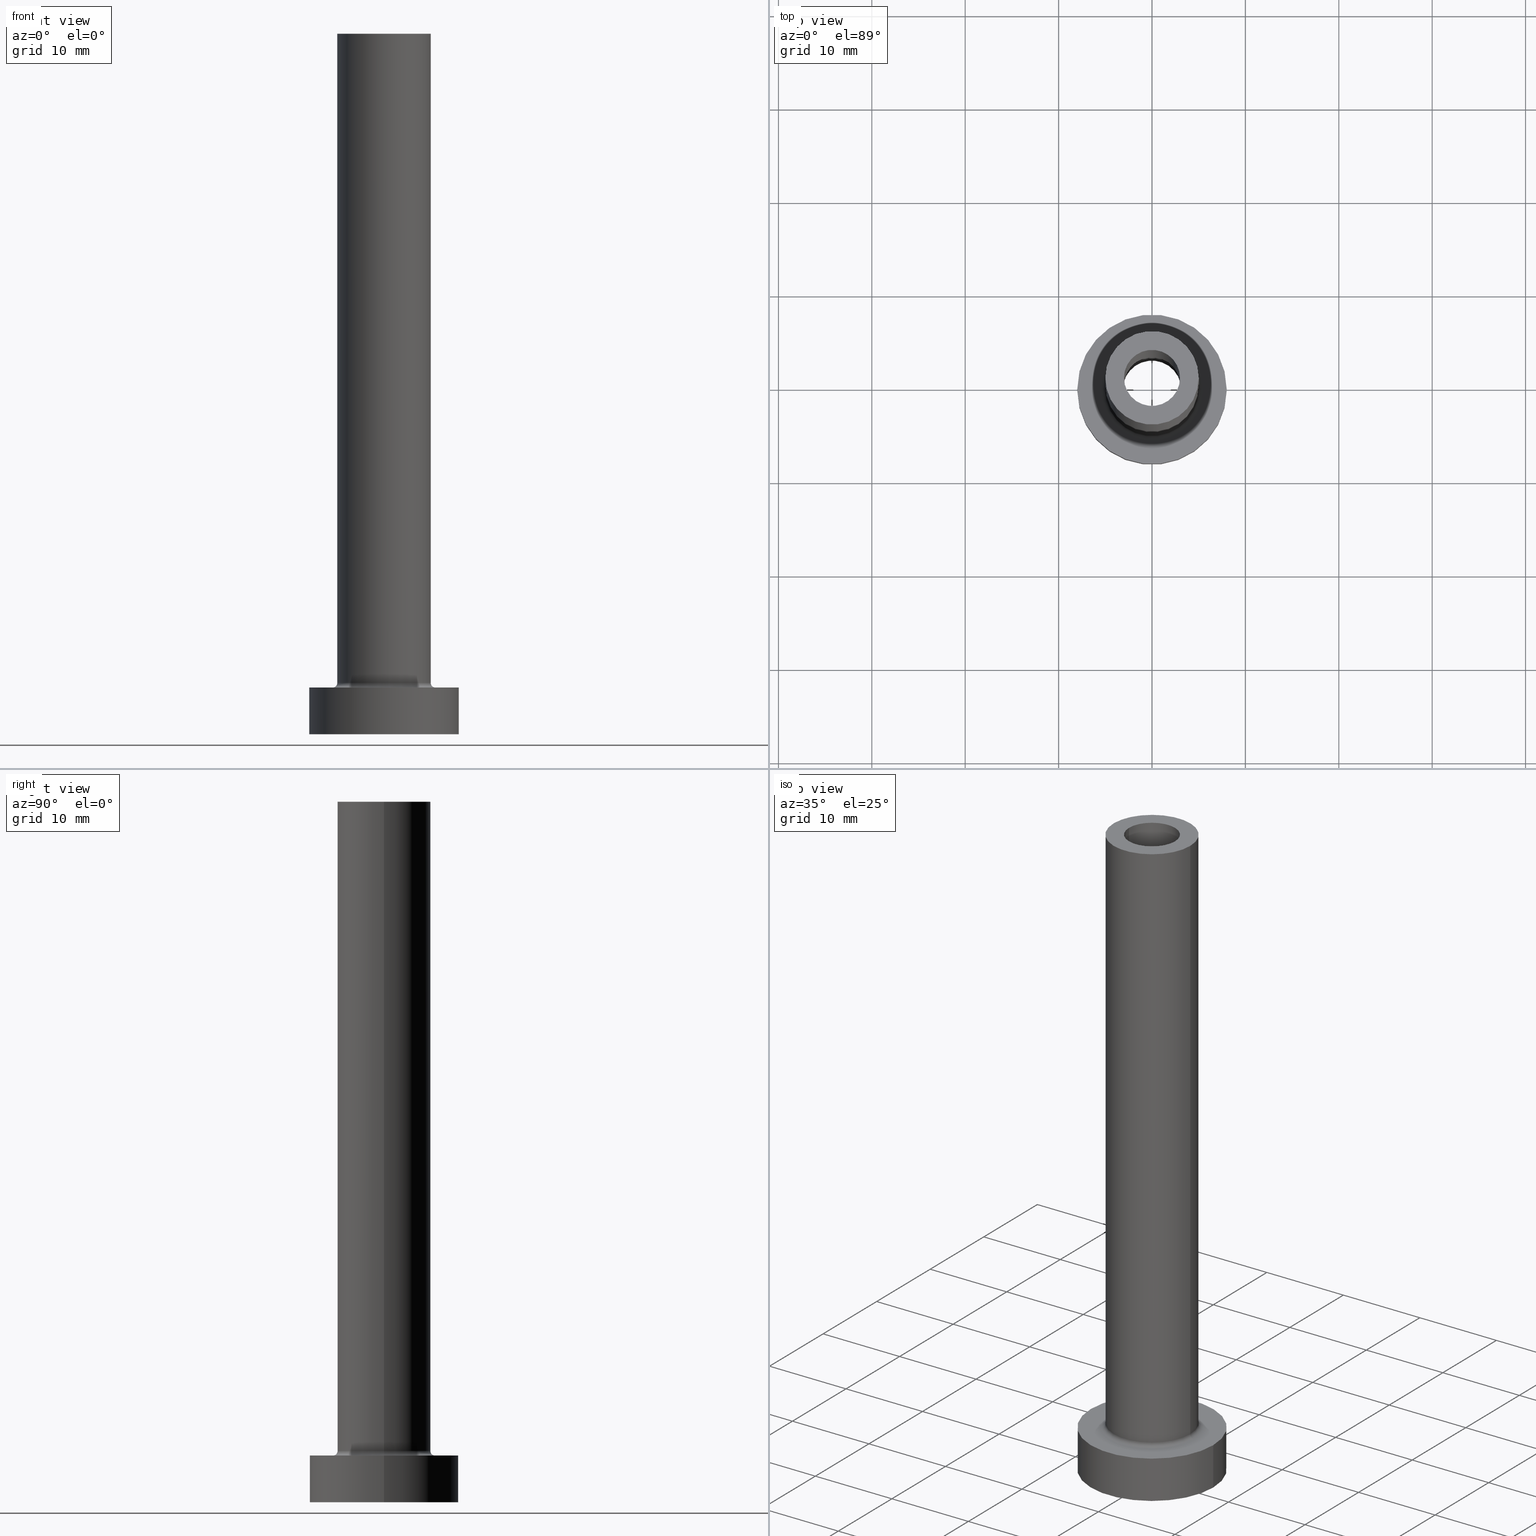
[diagram: canonical four-view strip — front | top / right | iso, engineering-drawing reading convention]
A machine part, canonical four-view strip (front | top / right | iso — engineering-drawing reading convention). The complete STEP part file that produces these views, byte-faithful:
ISO-10303-21;
HEADER;
FILE_DESCRIPTION (( 'STEP AP203' ),
    '1' );
FILE_NAME ('b664.STEP',
    '2023-02-13T10:10:41',
    ( '' ),
    ( '' ),
    'SwSTEP 2.0',
    'SolidWorks 2019',
    '' );
FILE_SCHEMA (( 'CONFIG_CONTROL_DESIGN' ));
ENDSEC;

DATA;
#1 = EDGE_LOOP ( 'NONE', ( #202, #351 ) ) ;
#2 = CARTESIAN_POINT ( 'NONE',  ( 0.000000000000000000, 0.000000000000000000, 5.000000000000000000 ) ) ;
#3 = AXIS2_PLACEMENT_3D ( 'NONE', #93, #126, #410 ) ;
#4 = LOCAL_TIME ( 11, 10, 41.00000000000000000, #52 ) ;
#5 = EDGE_LOOP ( 'NONE', ( #183, #324 ) ) ;
#6 = CARTESIAN_POINT ( 'NONE',  ( 0.000000000000000000, 0.000000000000000000, 5.000000000000000000 ) ) ;
#7 = APPROVAL_STATUS ( 'not_yet_approved' ) ;
#8 = EDGE_CURVE ( 'NONE', #275, #211, #398, .T. ) ;
#9 = CARTESIAN_POINT ( 'NONE',  ( 8.000000000000000000, 9.797174393178825657E-16, 5.000000000000000000 ) ) ;
#10 = FACE_BOUND ( 'NONE', #224, .T. ) ;
#11 = DIRECTION ( 'NONE',  ( 1.000000000000000000, 0.000000000000000000, 0.000000000000000000 ) ) ;
#12 = AXIS2_PLACEMENT_3D ( 'NONE', #6, #69, #395 ) ;
#13 = CIRCLE ( 'NONE', #12, 8.000000000000000000 ) ;
#14 = DIRECTION ( 'NONE',  ( -0.000000000000000000, -0.000000000000000000, -1.000000000000000000 ) ) ;
#15 = CARTESIAN_POINT ( 'NONE',  ( 0.000000000000000000, 0.000000000000000000, 30.00000000000001421 ) ) ;
#16 = CARTESIAN_POINT ( 'NONE',  ( 3.000000000000000444, 3.673940397442059868E-16, 30.00000000000001421 ) ) ;
#17 = CC_DESIGN_PERSON_AND_ORGANIZATION_ASSIGNMENT ( #105, #214, ( #457 ) ) ;
#18 = DIRECTION ( 'NONE',  ( 1.000000000000000000, 0.000000000000000000, 0.000000000000000000 ) ) ;
#19 = DIRECTION ( 'NONE',  ( -0.000000000000000000, -0.000000000000000000, -1.000000000000000000 ) ) ;
#20 = VERTEX_POINT ( 'NONE', #119 ) ;
#21 = AXIS2_PLACEMENT_3D ( 'NONE', #44, #150, #158 ) ;
#22 = DIRECTION ( 'NONE',  ( 1.000000000000000000, 0.000000000000000000, 0.000000000000000000 ) ) ;
#23 = ORGANIZATION ( 'NEUR�EN�', 'NEUR�EN�', '' ) ;
#24 = PERSON_AND_ORGANIZATION ( #127, #23 ) ;
#25 = VECTOR ( 'NONE', #298, 1000.000000000000000 ) ;
#26 = EDGE_LOOP ( 'NONE', ( #134, #363, #412, #379 ) ) ;
#27 = CC_DESIGN_APPROVAL ( #70, ( #133 ) ) ;
#28 = ORIENTED_EDGE ( 'NONE', *, *, #181, .T. ) ;
#29 = EDGE_CURVE ( 'NONE', #293, #61, #200, .T. ) ;
#30 = APPROVAL_ROLE ( '' ) ;
#31 = ORIENTED_EDGE ( 'NONE', *, *, #163, .F. ) ;
#32 = CALENDAR_DATE ( 2023, 13, 2 ) ;
#33 = CARTESIAN_POINT ( 'NONE',  ( 8.000000000000000000, 9.797174393178825657E-16, 0.000000000000000000 ) ) ;
#34 = CARTESIAN_POINT ( 'NONE',  ( 0.000000000000000000, 0.000000000000000000, 0.000000000000000000 ) ) ;
#35 = VECTOR ( 'NONE', #249, 1000.000000000000000 ) ;
#36 = LINE ( 'NONE', #429, #286 ) ;
#37 = ORIENTED_EDGE ( 'NONE', *, *, #212, .T. ) ;
#38 = DIRECTION ( 'NONE',  ( 1.000000000000000000, 0.000000000000000000, 0.000000000000000000 ) ) ;
#39 = ORIENTED_EDGE ( 'NONE', *, *, #59, .F. ) ;
#40 = DIRECTION ( 'NONE',  ( 0.000000000000000000, 0.000000000000000000, -1.000000000000000000 ) ) ;
#41 = EDGE_CURVE ( 'NONE', #404, #391, #356, .T. ) ;
#42 = AXIS2_PLACEMENT_3D ( 'NONE', #257, #325, #178 ) ;
#43 = PERSON_AND_ORGANIZATION ( #127, #23 ) ;
#44 = CARTESIAN_POINT ( 'NONE',  ( 0.000000000000000000, 0.000000000000000000, 75.00000000000001421 ) ) ;
#45 = DIRECTION ( 'NONE',  ( 0.000000000000000000, 0.000000000000000000, 1.000000000000000000 ) ) ;
#46 = MECHANICAL_CONTEXT ( 'NONE', #449, 'mechanical' ) ;
#47 = CYLINDRICAL_SURFACE ( 'NONE', #444, 3.000000000000000444 ) ;
#48 = DIRECTION ( 'NONE',  ( 1.000000000000000000, 0.000000000000000000, 0.000000000000000000 ) ) ;
#49 = DATE_AND_TIME ( #305, #279 ) ;
#50 = DIRECTION ( 'NONE',  ( 0.000000000000000000, 0.000000000000000000, -1.000000000000000000 ) ) ;
#51 = ADVANCED_FACE ( 'NONE', ( #304 ), #47, .F. ) ;
#52 = COORDINATED_UNIVERSAL_TIME_OFFSET ( 1, 0, .AHEAD. ) ;
#53 = AXIS2_PLACEMENT_3D ( 'NONE', #120, #152, #263 ) ;
#54 = CYLINDRICAL_SURFACE ( 'NONE', #448, 3.000000000000000444 ) ;
#55 = DIRECTION ( 'NONE',  ( -0.000000000000000000, -0.000000000000000000, -1.000000000000000000 ) ) ;
#56 = ORIENTED_EDGE ( 'NONE', *, *, #245, .F. ) ;
#57 = DIRECTION ( 'NONE',  ( -1.000000000000000000, 0.000000000000000000, 0.000000000000000000 ) ) ;
#58 = CARTESIAN_POINT ( 'NONE',  ( 0.000000000000000000, 0.000000000000000000, 0.000000000000000000 ) ) ;
#59 = EDGE_CURVE ( 'NONE', #369, #327, #216, .T. ) ;
#60 = VECTOR ( 'NONE', #455, 1000.000000000000000 ) ;
#61 = VERTEX_POINT ( 'NONE', #432 ) ;
#62 = VERTEX_POINT ( 'NONE', #401 ) ;
#63 = EDGE_CURVE ( 'NONE', #382, #253, #164, .T. ) ;
#64 = VECTOR ( 'NONE', #338, 1000.000000000000000 ) ;
#65 = VERTEX_POINT ( 'NONE', #271 ) ;
#66 = APPROVAL_PERSON_ORGANIZATION ( #88, #169, #195 ) ;
#67 = ORIENTED_EDGE ( 'NONE', *, *, #177, .T. ) ;
#68 = APPROVAL_STATUS ( 'not_yet_approved' ) ;
#69 = DIRECTION ( 'NONE',  ( 0.000000000000000000, 0.000000000000000000, 1.000000000000000000 ) ) ;
#70 = APPROVAL ( #7, 'NEUR�EN�' ) ;
#71 = LINE ( 'NONE', #386, #35 ) ;
#72 = DIRECTION ( 'NONE',  ( 0.000000000000000000, 0.000000000000000000, 1.000000000000000000 ) ) ;
#73 = LOCAL_TIME ( 11, 10, 41.00000000000000000, #100 ) ;
#74 = ORIENTED_EDGE ( 'NONE', *, *, #63, .F. ) ;
#75 = DIRECTION ( 'NONE',  ( -1.000000000000000000, 0.000000000000000000, 0.000000000000000000 ) ) ;
#76 = EDGE_LOOP ( 'NONE', ( #56, #242, #86, #96 ) ) ;
#77 = ADVANCED_FACE ( 'NONE', ( #196 ), #340, .T. ) ;
#78 = CARTESIAN_POINT ( 'NONE',  ( 0.000000000000000000, 0.000000000000000000, 5.000000000000000000 ) ) ;
#79 = APPROVAL_STATUS ( 'not_yet_approved' ) ;
#80 = CARTESIAN_POINT ( 'NONE',  ( 0.000000000000000000, 0.000000000000000000, 30.00000000000001421 ) ) ;
#81 = AXIS2_PLACEMENT_3D ( 'NONE', #180, #461, #254 ) ;
#82 =( LENGTH_UNIT ( ) NAMED_UNIT ( * ) SI_UNIT ( .MILLI., .METRE. ) );
#83 = LINE ( 'NONE', #9, #25 ) ;
#84 = CARTESIAN_POINT ( 'NONE',  ( -3.000000000000000444, 0.000000000000000000, 75.00000000000001421 ) ) ;
#85 = APPROVAL ( #68, 'NEUR�EN�' ) ;
#86 = ORIENTED_EDGE ( 'NONE', *, *, #326, .T. ) ;
#87 = CARTESIAN_POINT ( 'NONE',  ( 0.000000000000000000, 0.000000000000000000, 30.00000000000001421 ) ) ;
#88 = PERSON_AND_ORGANIZATION ( #127, #23 ) ;
#89 = ORIENTED_EDGE ( 'NONE', *, *, #117, .T. ) ;
#90 = FACE_OUTER_BOUND ( 'NONE', #26, .T. ) ;
#91 = VECTOR ( 'NONE', #14, 1000.000000000000000 ) ;
#92 = DIRECTION ( 'NONE',  ( 0.000000000000000000, 0.000000000000000000, 1.000000000000000000 ) ) ;
#93 = CARTESIAN_POINT ( 'NONE',  ( 0.000000000000000000, 0.000000000000000000, 38.90954544295051676 ) ) ;
#94 = DIRECTION ( 'NONE',  ( 1.000000000000000000, 0.000000000000000000, -0.000000000000000000 ) ) ;
#95 = ADVANCED_FACE ( 'NONE', ( #262 ), #54, .F. ) ;
#96 = ORIENTED_EDGE ( 'NONE', *, *, #433, .F. ) ;
#97 = CIRCLE ( 'NONE', #409, 8.000000000000000000 ) ;
#98 = EDGE_CURVE ( 'NONE', #296, #220, #83, .T. ) ;
#99 = ORIENTED_EDGE ( 'NONE', *, *, #117, .F. ) ;
#100 = COORDINATED_UNIVERSAL_TIME_OFFSET ( 1, 0, .AHEAD. ) ;
#101 = VERTEX_POINT ( 'NONE', #408 ) ;
#102 = DATE_TIME_ROLE ( 'classification_date' ) ;
#103 = CARTESIAN_POINT ( 'NONE',  ( 0.000000000000000000, 0.000000000000000000, 0.000000000000000000 ) ) ;
#104 = CIRCLE ( 'NONE', #358, 8.000000000000000000 ) ;
#105 = PERSON_AND_ORGANIZATION ( #127, #23 ) ;
#106 = FACE_OUTER_BOUND ( 'NONE', #5, .T. ) ;
#107 = DIRECTION ( 'NONE',  ( 0.000000000000000000, 0.000000000000000000, 1.000000000000000000 ) ) ;
#108 = ORIENTED_EDGE ( 'NONE', *, *, #276, .F. ) ;
#109 = DIRECTION ( 'NONE',  ( 0.000000000000000000, 0.000000000000000000, 1.000000000000000000 ) ) ;
#110 = AXIS2_PLACEMENT_3D ( 'NONE', #87, #371, #48 ) ;
#111 = EDGE_CURVE ( 'NONE', #253, #327, #228, .T. ) ;
#112 = ORIENTED_EDGE ( 'NONE', *, *, #355, .F. ) ;
#113 = DIRECTION ( 'NONE',  ( -0.000000000000000000, -0.000000000000000000, -1.000000000000000000 ) ) ;
#114 = ORIENTED_EDGE ( 'NONE', *, *, #233, .F. ) ;
#115 = DIRECTION ( 'NONE',  ( -0.000000000000000000, -0.000000000000000000, -1.000000000000000000 ) ) ;
#116 = DIRECTION ( 'NONE',  ( -1.000000000000000000, 0.000000000000000000, 0.000000000000000000 ) ) ;
#117 = EDGE_CURVE ( 'NONE', #293, #20, #284, .T. ) ;
#118 = AXIS2_PLACEMENT_3D ( 'NONE', #426, #55, #299 ) ;
#119 = CARTESIAN_POINT ( 'NONE',  ( -5.000000000000000000, 0.000000000000000000, 75.00000000000001421 ) ) ;
#120 = CARTESIAN_POINT ( 'NONE',  ( 0.000000000000000000, 0.000000000000000000, 5.000000000000000000 ) ) ;
#121 = APPROVAL_DATE_TIME ( #403, #169 ) ;
#122 = DIRECTION ( 'NONE',  ( 0.000000000000000000, -1.000000000000000000, 0.000000000000000000 ) ) ;
#123 = CARTESIAN_POINT ( 'NONE',  ( -5.000000000000000000, 0.000000000000000000, 5.500000000000005329 ) ) ;
#124 = CARTESIAN_POINT ( 'NONE',  ( 0.000000000000000000, 0.000000000000000000, 0.000000000000000000 ) ) ;
#125 = DIRECTION ( 'NONE',  ( 0.000000000000000000, 0.000000000000000000, 1.000000000000000000 ) ) ;
#126 = DIRECTION ( 'NONE',  ( 0.000000000000000000, 0.000000000000000000, -1.000000000000000000 ) ) ;
#127 = PERSON ( 'NEUR�EN�', 'NEUR�EN�', 'NEUR�EN�', ('NEUR�EN�'), ('NEUR�EN�'), ('NEUR�EN�') ) ;
#128 = VERTEX_POINT ( 'NONE', #123 ) ;
#129 = EDGE_CURVE ( 'NONE', #253, #382, #247, .T. ) ;
#130 = ORIENTED_EDGE ( 'NONE', *, *, #131, .T. ) ;
#131 = EDGE_CURVE ( 'NONE', #128, #61, #352, .T. ) ;
#132 = AXIS2_PLACEMENT_3D ( 'NONE', #225, #272, #437 ) ;
#133 = PRODUCT_DEFINITION_FORMATION_WITH_SPECIFIED_SOURCE ( 'LIBOVOLN�', '', #207, .NOT_KNOWN. ) ;
#134 = ORIENTED_EDGE ( 'NONE', *, *, #131, .F. ) ;
#135 = EDGE_LOOP ( 'NONE', ( #244, #335, #39, #394 ) ) ;
#136 = CALENDAR_DATE ( 2023, 13, 2 ) ;
#137 = PERSON_AND_ORGANIZATION ( #127, #23 ) ;
#138 = ADVANCED_FACE ( 'NONE', ( #310, #168 ), #274, .F. ) ;
#139 = AXIS2_PLACEMENT_3D ( 'NONE', #294, #40, #75 ) ;
#140 = CARTESIAN_POINT ( 'NONE',  ( 5.000000000000000000, 6.123233995736766282E-16, 75.00000000000001421 ) ) ;
#141 = CARTESIAN_POINT ( 'NONE',  ( 0.000000000000000000, 0.000000000000000000, 30.00000000000001421 ) ) ;
#142 = ORIENTED_EDGE ( 'NONE', *, *, #129, .T. ) ;
#143 = PLANE ( 'NONE',  #383 ) ;
#144 = ADVANCED_FACE ( 'NONE', ( #239, #201 ), #143, .T. ) ;
#145 = EDGE_LOOP ( 'NONE', ( #74, #313 ) ) ;
#146 = CYLINDRICAL_SURFACE ( 'NONE', #139, 3.150000000000000355 ) ;
#147 = CIRCLE ( 'NONE', #273, 0.5000000000000004441 ) ;
#148 = ORIENTED_EDGE ( 'NONE', *, *, #29, .F. ) ;
#149 = CARTESIAN_POINT ( 'NONE',  ( 0.000000000000000000, 0.000000000000000000, 75.00000000000001421 ) ) ;
#150 = DIRECTION ( 'NONE',  ( -0.000000000000000000, -0.000000000000000000, -1.000000000000000000 ) ) ;
#151 = CC_DESIGN_DATE_AND_TIME_ASSIGNMENT ( #49, #330, ( #424 ) ) ;
#152 = DIRECTION ( 'NONE',  ( 0.000000000000000000, 0.000000000000000000, 1.000000000000000000 ) ) ;
#153 = AXIS2_PLACEMENT_3D ( 'NONE', #15, #161, #230 ) ;
#154 = ORIENTED_EDGE ( 'NONE', *, *, #259, .T. ) ;
#155 = DIRECTION ( 'NONE',  ( 1.000000000000000000, 0.000000000000000000, 0.000000000000000000 ) ) ;
#156 = AXIS2_PLACEMENT_3D ( 'NONE', #399, #309, #341 ) ;
#157 = CARTESIAN_POINT ( 'NONE',  ( 5.500000000000000000, 0.000000000000000000, 5.500000000000005329 ) ) ;
#158 = DIRECTION ( 'NONE',  ( -1.000000000000000000, 0.000000000000000000, 0.000000000000000000 ) ) ;
#159 = DIRECTION ( 'NONE',  ( 0.000000000000000000, 0.000000000000000000, 1.000000000000000000 ) ) ;
#160 = PRODUCT_DEFINITION_SHAPE ( 'NONE', 'NONE',  #424 ) ;
#161 = DIRECTION ( 'NONE',  ( 0.000000000000000000, 0.000000000000000000, 1.000000000000000000 ) ) ;
#162 = CYLINDRICAL_SURFACE ( 'NONE', #3, 3.150000000000000355 ) ;
#163 = EDGE_CURVE ( 'NONE', #391, #211, #36, .T. ) ;
#164 = CIRCLE ( 'NONE', #387, 3.000000000000000444 ) ;
#165 = CARTESIAN_POINT ( 'NONE',  ( 0.000000000000000000, 0.000000000000000000, 75.00000000000001421 ) ) ;
#166 = CYLINDRICAL_SURFACE ( 'NONE', #132, 5.000000000000000000 ) ;
#167 = AXIS2_PLACEMENT_3D ( 'NONE', #332, #115, #57 ) ;
#168 = FACE_OUTER_BOUND ( 'NONE', #1, .T. ) ;
#169 = APPROVAL ( #79, 'NEUR�EN�' ) ;
#170 = ORIENTED_EDGE ( 'NONE', *, *, #163, .T. ) ;
#171 = CIRCLE ( 'NONE', #435, 5.500000000000000000 ) ;
#172 = ORIENTED_EDGE ( 'NONE', *, *, #233, .T. ) ;
#173 = DATE_AND_TIME ( #136, #287 ) ;
#174 = MANIFOLD_SOLID_BREP ( 'Odebrat vysunut�m4', #194 ) ;
#175 = ORIENTED_EDGE ( 'NONE', *, *, #355, .T. ) ;
#176 = DATE_AND_TIME ( #32, #73 ) ;
#177 = EDGE_CURVE ( 'NONE', #382, #369, #184, .T. ) ;
#178 = DIRECTION ( 'NONE',  ( 1.000000000000000000, 0.000000000000000000, 0.000000000000000000 ) ) ;
#179 = CIRCLE ( 'NONE', #456, 5.000000000000000000 ) ;
#180 = CARTESIAN_POINT ( 'NONE',  ( 0.000000000000000000, 0.000000000000000000, 30.00000000000001421 ) ) ;
#181 = EDGE_CURVE ( 'NONE', #404, #275, #71, .T. ) ;
#182 = DIRECTION ( 'NONE',  ( 1.000000000000000000, 0.000000000000000000, 0.000000000000000000 ) ) ;
#183 = ORIENTED_EDGE ( 'NONE', *, *, #41, .F. ) ;
#184 = LINE ( 'NONE', #388, #203 ) ;
#185 = ORIENTED_EDGE ( 'NONE', *, *, #317, .F. ) ;
#186 = DIRECTION ( 'NONE',  ( 0.000000000000000000, 0.000000000000000000, 1.000000000000000000 ) ) ;
#187 =( GEOMETRIC_REPRESENTATION_CONTEXT ( 3 ) GLOBAL_UNCERTAINTY_ASSIGNED_CONTEXT ( ( #280 ) ) GLOBAL_UNIT_ASSIGNED_CONTEXT ( ( #82, #346, #343 ) ) REPRESENTATION_CONTEXT ( 'NONE', 'WORKASPACE' ) );
#188 = ADVANCED_BREP_SHAPE_REPRESENTATION ( 'b664', ( #174, #390 ), #187 ) ;
#189 = ORIENTED_EDGE ( 'NONE', *, *, #98, .F. ) ;
#190 = DIRECTION ( 'NONE',  ( 1.000000000000000000, 0.000000000000000000, 0.000000000000000000 ) ) ;
#191 = EDGE_CURVE ( 'NONE', #101, #65, #302, .T. ) ;
#192 = CARTESIAN_POINT ( 'NONE',  ( 0.000000000000000000, 0.000000000000000000, 75.00000000000001421 ) ) ;
#193 = LINE ( 'NONE', #323, #91 ) ;
#194 = CLOSED_SHELL ( 'NONE', ( #51, #241, #376, #342, #368, #303, #380, #138, #77, #144, #199, #361, #295, #95 ) ) ;
#195 = APPROVAL_ROLE ( '' ) ;
#196 = FACE_OUTER_BOUND ( 'NONE', #446, .T. ) ;
#197 = ORIENTED_EDGE ( 'NONE', *, *, #8, .T. ) ;
#198 = DIRECTION ( 'NONE',  ( -0.000000000000000000, -0.000000000000000000, -1.000000000000000000 ) ) ;
#199 = ADVANCED_FACE ( 'NONE', ( #392 ), #218, .F. ) ;
#200 = LINE ( 'NONE', #370, #64 ) ;
#201 = FACE_OUTER_BOUND ( 'NONE', #418, .T. ) ;
#202 = ORIENTED_EDGE ( 'NONE', *, *, #259, .F. ) ;
#203 = VECTOR ( 'NONE', #248, 1000.000000000000000 ) ;
#204 = APPROVAL_PERSON_ORGANIZATION ( #137, #85, #30 ) ;
#205 = EDGE_LOOP ( 'NONE', ( #452, #170, #175, #208 ) ) ;
#206 = AXIS2_PLACEMENT_3D ( 'NONE', #192, #333, #11 ) ;
#207 = PRODUCT ( 'b664', 'b664', '', ( #46 ) ) ;
#208 = ORIENTED_EDGE ( 'NONE', *, *, #181, .F. ) ;
#209 = AXIS2_PLACEMENT_3D ( 'NONE', #141, #109, #362 ) ;
#210 = CC_DESIGN_APPROVAL ( #169, ( #424 ) ) ;
#211 = VERTEX_POINT ( 'NONE', #290 ) ;
#212 = EDGE_CURVE ( 'NONE', #391, #404, #373, .T. ) ;
#213 = DIRECTION ( 'NONE',  ( 1.000000000000000000, 0.000000000000000000, 0.000000000000000000 ) ) ;
#214 = PERSON_AND_ORGANIZATION_ROLE ( 'classification_officer' ) ;
#215 = FACE_OUTER_BOUND ( 'NONE', #205, .T. ) ;
#216 = CIRCLE ( 'NONE', #364, 3.000000000000000444 ) ;
#217 = AXIS2_PLACEMENT_3D ( 'NONE', #406, #92, #22 ) ;
#218 = TOROIDAL_SURFACE ( 'NONE', #389, 5.500000000000000000, 0.5000000000000000000 ) ;
#219 = FACE_OUTER_BOUND ( 'NONE', #348, .T. ) ;
#220 = VERTEX_POINT ( 'NONE', #33 ) ;
#221 = DIRECTION ( 'NONE',  ( 1.000000000000000000, 0.000000000000000000, 0.000000000000000000 ) ) ;
#222 = ORIENTED_EDGE ( 'NONE', *, *, #227, .T. ) ;
#223 = DIRECTION ( 'NONE',  ( 0.000000000000000000, 0.000000000000000000, 1.000000000000000000 ) ) ;
#224 = EDGE_LOOP ( 'NONE', ( #306, #360 ) ) ;
#225 = CARTESIAN_POINT ( 'NONE',  ( 0.000000000000000000, 0.000000000000000000, 75.00000000000001421 ) ) ;
#226 = AXIS2_PLACEMENT_3D ( 'NONE', #58, #411, #94 ) ;
#227 = EDGE_CURVE ( 'NONE', #61, #128, #345, .T. ) ;
#228 = LINE ( 'NONE', #439, #350 ) ;
#229 = PERSON_AND_ORGANIZATION_ROLE ( 'creator' ) ;
#230 = DIRECTION ( 'NONE',  ( 1.000000000000000000, 0.000000000000000000, 0.000000000000000000 ) ) ;
#231 = FACE_OUTER_BOUND ( 'NONE', #76, .T. ) ;
#232 = EDGE_LOOP ( 'NONE', ( #240, #428 ) ) ;
#233 = EDGE_CURVE ( 'NONE', #281, #296, #13, .T. ) ;
#234 = CARTESIAN_POINT ( 'NONE',  ( 3.150000000000000355, 3.857637417314163182E-16, 30.00000000000001421 ) ) ;
#235 = AXIS2_PLACEMENT_3D ( 'NONE', #124, #19, #155 ) ;
#236 = APPROVAL_PERSON_ORGANIZATION ( #43, #70, #442 ) ;
#237 = ORIENTED_EDGE ( 'NONE', *, *, #276, .T. ) ;
#238 = CARTESIAN_POINT ( 'NONE',  ( 0.000000000000000000, 0.000000000000000000, 0.000000000000000000 ) ) ;
#239 = FACE_BOUND ( 'NONE', #145, .T. ) ;
#240 = ORIENTED_EDGE ( 'NONE', *, *, #59, .T. ) ;
#241 = ADVANCED_FACE ( 'NONE', ( #215 ), #146, .F. ) ;
#242 = ORIENTED_EDGE ( 'NONE', *, *, #98, .T. ) ;
#243 = SECURITY_CLASSIFICATION_LEVEL ( 'unclassified' ) ;
#244 = ORIENTED_EDGE ( 'NONE', *, *, #63, .T. ) ;
#245 = EDGE_CURVE ( 'NONE', #296, #281, #97, .T. ) ;
#246 = ORIENTED_EDGE ( 'NONE', *, *, #420, .F. ) ;
#247 = CIRCLE ( 'NONE', #217, 3.000000000000000444 ) ;
#248 = DIRECTION ( 'NONE',  ( 0.000000000000000000, 0.000000000000000000, -1.000000000000000000 ) ) ;
#249 = DIRECTION ( 'NONE',  ( 0.000000000000000000, 0.000000000000000000, -1.000000000000000000 ) ) ;
#250 = CC_DESIGN_DATE_AND_TIME_ASSIGNMENT ( #419, #102, ( #457 ) ) ;
#251 = DIRECTION ( 'NONE',  ( 1.000000000000000000, 0.000000000000000000, -0.000000000000000000 ) ) ;
#252 = AXIS2_PLACEMENT_3D ( 'NONE', #367, #45, #190 ) ;
#253 = VERTEX_POINT ( 'NONE', #357 ) ;
#254 = DIRECTION ( 'NONE',  ( 1.000000000000000000, 0.000000000000000000, 0.000000000000000000 ) ) ;
#255 = APPLICATION_PROTOCOL_DEFINITION ( 'international standard', 'config_control_design', 1994, #396 ) ;
#256 = EDGE_LOOP ( 'NONE', ( #99, #291, #222, #451 ) ) ;
#257 = CARTESIAN_POINT ( 'NONE',  ( 0.000000000000000000, 0.000000000000000000, 5.500000000000005329 ) ) ;
#258 = EDGE_LOOP ( 'NONE', ( #185, #425, #460, #315 ) ) ;
#259 = EDGE_CURVE ( 'NONE', #62, #220, #104, .T. ) ;
#260 = PLANE ( 'NONE',  #53 ) ;
#261 = PERSON_AND_ORGANIZATION ( #127, #23 ) ;
#262 = FACE_OUTER_BOUND ( 'NONE', #378, .T. ) ;
#263 = DIRECTION ( 'NONE',  ( 1.000000000000000000, 0.000000000000000000, -0.000000000000000000 ) ) ;
#264 = AXIS2_PLACEMENT_3D ( 'NONE', #2, #113, #38 ) ;
#265 = CC_DESIGN_APPROVAL ( #85, ( #457 ) ) ;
#266 = PERSON_AND_ORGANIZATION_ROLE ( 'design_owner' ) ;
#267 = DIRECTION ( 'NONE',  ( 0.000000000000000000, 0.000000000000000000, -1.000000000000000000 ) ) ;
#268 = DIRECTION ( 'NONE',  ( 0.000000000000000000, 0.000000000000000000, -1.000000000000000000 ) ) ;
#269 = DIRECTION ( 'NONE',  ( 0.000000000000000000, 0.000000000000000000, 1.000000000000000000 ) ) ;
#270 = CARTESIAN_POINT ( 'NONE',  ( -3.150000000000000355, 0.000000000000000000, 30.00000000000001421 ) ) ;
#271 = CARTESIAN_POINT ( 'NONE',  ( 5.500000000000000000, 0.000000000000000000, 5.000000000000002665 ) ) ;
#272 = DIRECTION ( 'NONE',  ( -0.000000000000000000, -0.000000000000000000, -1.000000000000000000 ) ) ;
#273 = AXIS2_PLACEMENT_3D ( 'NONE', #157, #122, #268 ) ;
#274 = PLANE ( 'NONE',  #226 ) ;
#275 = VERTEX_POINT ( 'NONE', #329 ) ;
#276 = EDGE_CURVE ( 'NONE', #20, #293, #179, .T. ) ;
#277 = COORDINATED_UNIVERSAL_TIME_OFFSET ( 1, 0, .AHEAD. ) ;
#278 = CIRCLE ( 'NONE', #156, 0.5000000000000004441 ) ;
#279 = LOCAL_TIME ( 11, 10, 41.00000000000000000, #337 ) ;
#280 = UNCERTAINTY_MEASURE_WITH_UNIT (LENGTH_MEASURE( 1.000000000000000082E-05 ), #82, 'distance_accuracy_value', 'NONE');
#281 = VERTEX_POINT ( 'NONE', #354 ) ;
#282 = EDGE_CURVE ( 'NONE', #20, #128, #318, .T. ) ;
#283 = EDGE_LOOP ( 'NONE', ( #31, #37, #28, #197 ) ) ;
#284 = CIRCLE ( 'NONE', #206, 5.000000000000000000 ) ;
#285 = APPROVAL_DATE_TIME ( #176, #85 ) ;
#286 = VECTOR ( 'NONE', #431, 1000.000000000000000 ) ;
#287 = LOCAL_TIME ( 11, 10, 41.00000000000000000, #384 ) ;
#288 = CC_DESIGN_PERSON_AND_ORGANIZATION_ASSIGNMENT ( #24, #416, ( #133 ) ) ;
#289 = DIRECTION ( 'NONE',  ( 1.000000000000000000, 0.000000000000000000, 0.000000000000000000 ) ) ;
#290 = CARTESIAN_POINT ( 'NONE',  ( 3.150000000000000355, 3.857637417314163182E-16, 0.000000000000000000 ) ) ;
#291 = ORIENTED_EDGE ( 'NONE', *, *, #29, .T. ) ;
#292 = PLANE ( 'NONE',  #209 ) ;
#293 = VERTEX_POINT ( 'NONE', #140 ) ;
#294 = CARTESIAN_POINT ( 'NONE',  ( 0.000000000000000000, 0.000000000000000000, 38.90954544295051676 ) ) ;
#295 = ADVANCED_FACE ( 'NONE', ( #422, #106 ), #292, .F. ) ;
#296 = VERTEX_POINT ( 'NONE', #423 ) ;
#297 = DIRECTION ( 'NONE',  ( 0.000000000000000000, 0.000000000000000000, 1.000000000000000000 ) ) ;
#298 = DIRECTION ( 'NONE',  ( -0.000000000000000000, -0.000000000000000000, -1.000000000000000000 ) ) ;
#299 = DIRECTION ( 'NONE',  ( -1.000000000000000000, 0.000000000000000000, 0.000000000000000000 ) ) ;
#300 = AXIS2_PLACEMENT_3D ( 'NONE', #301, #374, #397 ) ;
#301 = CARTESIAN_POINT ( 'NONE',  ( 0.000000000000000000, 0.000000000000000000, 0.000000000000000000 ) ) ;
#302 = CIRCLE ( 'NONE', #264, 5.500000000000000000 ) ;
#303 = ADVANCED_FACE ( 'NONE', ( #219 ), #359, .T. ) ;
#304 = FACE_OUTER_BOUND ( 'NONE', #135, .T. ) ;
#305 = CALENDAR_DATE ( 2023, 13, 2 ) ;
#306 = ORIENTED_EDGE ( 'NONE', *, *, #311, .T. ) ;
#307 = CARTESIAN_POINT ( 'NONE',  ( 0.000000000000000000, 0.000000000000000000, 5.000000000000000000 ) ) ;
#308 = ORIENTED_EDGE ( 'NONE', *, *, #245, .T. ) ;
#309 = DIRECTION ( 'NONE',  ( 1.224646799147353207E-16, 1.000000000000000000, -0.000000000000000000 ) ) ;
#310 = FACE_BOUND ( 'NONE', #415, .T. ) ;
#311 = EDGE_CURVE ( 'NONE', #65, #101, #171, .T. ) ;
#312 = DESIGN_CONTEXT ( 'detailed design', #396, 'design' ) ;
#313 = ORIENTED_EDGE ( 'NONE', *, *, #129, .F. ) ;
#314 = CIRCLE ( 'NONE', #110, 3.000000000000000444 ) ;
#315 = ORIENTED_EDGE ( 'NONE', *, *, #191, .F. ) ;
#316 = PERSON_AND_ORGANIZATION ( #127, #23 ) ;
#317 = EDGE_CURVE ( 'NONE', #128, #101, #278, .T. ) ;
#318 = LINE ( 'NONE', #319, #60 ) ;
#319 = CARTESIAN_POINT ( 'NONE',  ( -5.000000000000000000, 0.000000000000000000, 75.00000000000001421 ) ) ;
#320 = DIRECTION ( 'NONE',  ( 1.000000000000000000, 0.000000000000000000, 0.000000000000000000 ) ) ;
#321 = EDGE_LOOP ( 'NONE', ( #172, #308 ) ) ;
#322 = CARTESIAN_POINT ( 'NONE',  ( 0.000000000000000000, 0.000000000000000000, 75.00000000000001421 ) ) ;
#323 = CARTESIAN_POINT ( 'NONE',  ( -8.000000000000000000, 0.000000000000000000, 5.000000000000000000 ) ) ;
#324 = ORIENTED_EDGE ( 'NONE', *, *, #212, .F. ) ;
#325 = DIRECTION ( 'NONE',  ( 0.000000000000000000, 0.000000000000000000, 1.000000000000000000 ) ) ;
#326 = EDGE_CURVE ( 'NONE', #220, #62, #427, .T. ) ;
#327 = VERTEX_POINT ( 'NONE', #16 ) ;
#328 = CC_DESIGN_SECURITY_CLASSIFICATION ( #457, ( #133 ) ) ;
#329 = CARTESIAN_POINT ( 'NONE',  ( -3.150000000000000355, 0.000000000000000000, 0.000000000000000000 ) ) ;
#330 = DATE_TIME_ROLE ( 'creation_date' ) ;
#331 = DIRECTION ( 'NONE',  ( 0.000000000000000000, 0.000000000000000000, -1.000000000000000000 ) ) ;
#332 = CARTESIAN_POINT ( 'NONE',  ( 0.000000000000000000, 0.000000000000000000, 5.000000000000000000 ) ) ;
#333 = DIRECTION ( 'NONE',  ( 0.000000000000000000, 0.000000000000000000, 1.000000000000000000 ) ) ;
#334 = CC_DESIGN_PERSON_AND_ORGANIZATION_ASSIGNMENT ( #393, #229, ( #424 ) ) ;
#335 = ORIENTED_EDGE ( 'NONE', *, *, #111, .T. ) ;
#336 = CIRCLE ( 'NONE', #235, 3.150000000000000355 ) ;
#337 = COORDINATED_UNIVERSAL_TIME_OFFSET ( 1, 0, .AHEAD. ) ;
#338 = DIRECTION ( 'NONE',  ( -0.000000000000000000, -0.000000000000000000, -1.000000000000000000 ) ) ;
#339 = DIRECTION ( 'NONE',  ( 1.000000000000000000, 0.000000000000000000, 0.000000000000000000 ) ) ;
#340 = CYLINDRICAL_SURFACE ( 'NONE', #21, 5.000000000000000000 ) ;
#341 = DIRECTION ( 'NONE',  ( -1.000000000000000000, 1.224646799147351482E-16, 0.000000000000000000 ) ) ;
#342 = ADVANCED_FACE ( 'NONE', ( #440 ), #166, .T. ) ;
#343 =( NAMED_UNIT ( * ) SI_UNIT ( $, .STERADIAN. ) SOLID_ANGLE_UNIT ( ) );
#344 = DIRECTION ( 'NONE',  ( 1.000000000000000000, 0.000000000000000000, 0.000000000000000000 ) ) ;
#345 = CIRCLE ( 'NONE', #42, 5.000000000000000000 ) ;
#346 =( NAMED_UNIT ( * ) PLANE_ANGLE_UNIT ( ) SI_UNIT ( $, .RADIAN. ) );
#347 = CC_DESIGN_PERSON_AND_ORGANIZATION_ASSIGNMENT ( #316, #453, ( #133 ) ) ;
#348 = EDGE_LOOP ( 'NONE', ( #189, #114, #436, #154 ) ) ;
#349 = APPROVAL_DATE_TIME ( #173, #70 ) ;
#350 = VECTOR ( 'NONE', #267, 1000.000000000000000 ) ;
#351 = ORIENTED_EDGE ( 'NONE', *, *, #326, .F. ) ;
#352 = CIRCLE ( 'NONE', #400, 5.000000000000000000 ) ;
#353 = ORIENTED_EDGE ( 'NONE', *, *, #111, .F. ) ;
#354 = CARTESIAN_POINT ( 'NONE',  ( -8.000000000000000000, 0.000000000000000000, 5.000000000000000000 ) ) ;
#355 = EDGE_CURVE ( 'NONE', #211, #275, #336, .T. ) ;
#356 = CIRCLE ( 'NONE', #153, 3.150000000000000355 ) ;
#357 = CARTESIAN_POINT ( 'NONE',  ( 3.000000000000000444, 3.673940397442059868E-16, 75.00000000000001421 ) ) ;
#358 = AXIS2_PLACEMENT_3D ( 'NONE', #34, #186, #221 ) ;
#359 = CYLINDRICAL_SURFACE ( 'NONE', #118, 8.000000000000000000 ) ;
#360 = ORIENTED_EDGE ( 'NONE', *, *, #191, .T. ) ;
#361 = ADVANCED_FACE ( 'NONE', ( #375 ), #162, .F. ) ;
#362 = DIRECTION ( 'NONE',  ( 1.000000000000000000, 0.000000000000000000, -0.000000000000000000 ) ) ;
#363 = ORIENTED_EDGE ( 'NONE', *, *, #317, .T. ) ;
#364 = AXIS2_PLACEMENT_3D ( 'NONE', #80, #125, #372 ) ;
#365 = DIRECTION ( 'NONE',  ( 0.000000000000000000, 0.000000000000000000, 1.000000000000000000 ) ) ;
#366 = CARTESIAN_POINT ( 'NONE',  ( 0.000000000000000000, 0.000000000000000000, 75.00000000000001421 ) ) ;
#367 = CARTESIAN_POINT ( 'NONE',  ( 0.000000000000000000, 0.000000000000000000, 5.500000000000005329 ) ) ;
#368 = ADVANCED_FACE ( 'NONE', ( #231 ), #434, .T. ) ;
#369 = VERTEX_POINT ( 'NONE', #405 ) ;
#370 = CARTESIAN_POINT ( 'NONE',  ( 5.000000000000000000, 6.123233995736766282E-16, 75.00000000000001421 ) ) ;
#371 = DIRECTION ( 'NONE',  ( 0.000000000000000000, 0.000000000000000000, 1.000000000000000000 ) ) ;
#372 = DIRECTION ( 'NONE',  ( 1.000000000000000000, 0.000000000000000000, 0.000000000000000000 ) ) ;
#373 = CIRCLE ( 'NONE', #81, 3.150000000000000355 ) ;
#374 = DIRECTION ( 'NONE',  ( -0.000000000000000000, -0.000000000000000000, -1.000000000000000000 ) ) ;
#375 = FACE_OUTER_BOUND ( 'NONE', #283, .T. ) ;
#376 = ADVANCED_FACE ( 'NONE', ( #90 ), #450, .F. ) ;
#377 = DIRECTION ( 'NONE',  ( 0.000000000000000000, 0.000000000000000000, 1.000000000000000000 ) ) ;
#378 = EDGE_LOOP ( 'NONE', ( #353, #142, #67, #246 ) ) ;
#379 = ORIENTED_EDGE ( 'NONE', *, *, #441, .F. ) ;
#380 = ADVANCED_FACE ( 'NONE', ( #10, #402 ), #260, .T. ) ;
#381 = ORIENTED_EDGE ( 'NONE', *, *, #282, .T. ) ;
#382 = VERTEX_POINT ( 'NONE', #84 ) ;
#383 = AXIS2_PLACEMENT_3D ( 'NONE', #322, #365, #251 ) ;
#384 = COORDINATED_UNIVERSAL_TIME_OFFSET ( 1, 0, .AHEAD. ) ;
#385 = LOCAL_TIME ( 11, 10, 41.00000000000000000, #277 ) ;
#386 = CARTESIAN_POINT ( 'NONE',  ( -3.150000000000000355, 0.000000000000000000, 38.90954544295051676 ) ) ;
#387 = AXIS2_PLACEMENT_3D ( 'NONE', #366, #269, #18 ) ;
#388 = CARTESIAN_POINT ( 'NONE',  ( -3.000000000000000444, 0.000000000000000000, 75.00000000000001421 ) ) ;
#389 = AXIS2_PLACEMENT_3D ( 'NONE', #459, #72, #182 ) ;
#390 = AXIS2_PLACEMENT_3D ( 'NONE', #103, #107, #320 ) ;
#391 = VERTEX_POINT ( 'NONE', #234 ) ;
#392 = FACE_OUTER_BOUND ( 'NONE', #258, .T. ) ;
#393 = PERSON_AND_ORGANIZATION ( #127, #23 ) ;
#394 = ORIENTED_EDGE ( 'NONE', *, *, #177, .F. ) ;
#395 = DIRECTION ( 'NONE',  ( 1.000000000000000000, 0.000000000000000000, 0.000000000000000000 ) ) ;
#396 = APPLICATION_CONTEXT ( 'configuration controlled 3d designs of mechanical parts and assemblies' ) ;
#397 = DIRECTION ( 'NONE',  ( 1.000000000000000000, 0.000000000000000000, 0.000000000000000000 ) ) ;
#398 = CIRCLE ( 'NONE', #300, 3.150000000000000355 ) ;
#399 = CARTESIAN_POINT ( 'NONE',  ( -5.500000000000000000, 6.735557395310442023E-16, 5.500000000000005329 ) ) ;
#400 = AXIS2_PLACEMENT_3D ( 'NONE', #447, #377, #344 ) ;
#401 = CARTESIAN_POINT ( 'NONE',  ( -8.000000000000000000, 0.000000000000000000, 0.000000000000000000 ) ) ;
#402 = FACE_OUTER_BOUND ( 'NONE', #321, .T. ) ;
#403 = DATE_AND_TIME ( #438, #4 ) ;
#404 = VERTEX_POINT ( 'NONE', #270 ) ;
#405 = CARTESIAN_POINT ( 'NONE',  ( -3.000000000000000444, 0.000000000000000000, 30.00000000000001421 ) ) ;
#406 = CARTESIAN_POINT ( 'NONE',  ( 0.000000000000000000, 0.000000000000000000, 75.00000000000001421 ) ) ;
#407 = DIRECTION ( 'NONE',  ( 1.000000000000000000, 0.000000000000000000, 0.000000000000000000 ) ) ;
#408 = CARTESIAN_POINT ( 'NONE',  ( -5.500000000000000000, 6.735557395310442023E-16, 5.000000000000002665 ) ) ;
#409 = AXIS2_PLACEMENT_3D ( 'NONE', #78, #223, #289 ) ;
#410 = DIRECTION ( 'NONE',  ( -1.000000000000000000, 0.000000000000000000, 0.000000000000000000 ) ) ;
#411 = DIRECTION ( 'NONE',  ( 0.000000000000000000, 0.000000000000000000, 1.000000000000000000 ) ) ;
#412 = ORIENTED_EDGE ( 'NONE', *, *, #311, .F. ) ;
#413 = CC_DESIGN_PERSON_AND_ORGANIZATION_ASSIGNMENT ( #261, #266, ( #207 ) ) ;
#414 = AXIS2_PLACEMENT_3D ( 'NONE', #238, #159, #339 ) ;
#415 = EDGE_LOOP ( 'NONE', ( #430, #112 ) ) ;
#416 = PERSON_AND_ORGANIZATION_ROLE ( 'creator' ) ;
#417 = APPLICATION_PROTOCOL_DEFINITION ( 'international standard', 'config_control_design', 1994, #449 ) ;
#418 = EDGE_LOOP ( 'NONE', ( #237, #89 ) ) ;
#419 = DATE_AND_TIME ( #454, #385 ) ;
#420 = EDGE_CURVE ( 'NONE', #327, #369, #314, .T. ) ;
#421 = SHAPE_DEFINITION_REPRESENTATION ( #160, #188 ) ;
#422 = FACE_BOUND ( 'NONE', #232, .T. ) ;
#423 = CARTESIAN_POINT ( 'NONE',  ( 8.000000000000000000, 9.797174393178825657E-16, 5.000000000000000000 ) ) ;
#424 = PRODUCT_DEFINITION ( 'NEZN�M�', '', #133, #312 ) ;
#425 = ORIENTED_EDGE ( 'NONE', *, *, #227, .F. ) ;
#426 = CARTESIAN_POINT ( 'NONE',  ( 0.000000000000000000, 0.000000000000000000, 5.000000000000000000 ) ) ;
#427 = CIRCLE ( 'NONE', #414, 8.000000000000000000 ) ;
#428 = ORIENTED_EDGE ( 'NONE', *, *, #420, .T. ) ;
#429 = CARTESIAN_POINT ( 'NONE',  ( 3.150000000000000355, 3.857637417314163182E-16, 38.90954544295051676 ) ) ;
#430 = ORIENTED_EDGE ( 'NONE', *, *, #8, .F. ) ;
#431 = DIRECTION ( 'NONE',  ( 0.000000000000000000, 0.000000000000000000, -1.000000000000000000 ) ) ;
#432 = CARTESIAN_POINT ( 'NONE',  ( 5.000000000000000000, 6.123233995736766282E-16, 5.500000000000005329 ) ) ;
#433 = EDGE_CURVE ( 'NONE', #281, #62, #193, .T. ) ;
#434 = CYLINDRICAL_SURFACE ( 'NONE', #167, 8.000000000000000000 ) ;
#435 = AXIS2_PLACEMENT_3D ( 'NONE', #307, #198, #407 ) ;
#436 = ORIENTED_EDGE ( 'NONE', *, *, #433, .T. ) ;
#437 = DIRECTION ( 'NONE',  ( -1.000000000000000000, 0.000000000000000000, 0.000000000000000000 ) ) ;
#438 = CALENDAR_DATE ( 2023, 13, 2 ) ;
#439 = CARTESIAN_POINT ( 'NONE',  ( 3.000000000000000444, 3.673940397442059868E-16, 75.00000000000001421 ) ) ;
#440 = FACE_OUTER_BOUND ( 'NONE', #256, .T. ) ;
#441 = EDGE_CURVE ( 'NONE', #61, #65, #147, .T. ) ;
#442 = APPROVAL_ROLE ( '' ) ;
#443 = CARTESIAN_POINT ( 'NONE',  ( 0.000000000000000000, 0.000000000000000000, 75.00000000000001421 ) ) ;
#444 = AXIS2_PLACEMENT_3D ( 'NONE', #165, #50, #445 ) ;
#445 = DIRECTION ( 'NONE',  ( -1.000000000000000000, 0.000000000000000000, 0.000000000000000000 ) ) ;
#446 = EDGE_LOOP ( 'NONE', ( #148, #108, #381, #130 ) ) ;
#447 = CARTESIAN_POINT ( 'NONE',  ( 0.000000000000000000, 0.000000000000000000, 5.500000000000005329 ) ) ;
#448 = AXIS2_PLACEMENT_3D ( 'NONE', #443, #331, #116 ) ;
#449 = APPLICATION_CONTEXT ( 'configuration controlled 3d designs of mechanical parts and assemblies' ) ;
#450 = TOROIDAL_SURFACE ( 'NONE', #252, 5.500000000000000000, 0.5000000000000000000 ) ;
#451 = ORIENTED_EDGE ( 'NONE', *, *, #282, .F. ) ;
#452 = ORIENTED_EDGE ( 'NONE', *, *, #41, .T. ) ;
#453 = PERSON_AND_ORGANIZATION_ROLE ( 'design_supplier' ) ;
#454 = CALENDAR_DATE ( 2023, 13, 2 ) ;
#455 = DIRECTION ( 'NONE',  ( -0.000000000000000000, -0.000000000000000000, -1.000000000000000000 ) ) ;
#456 = AXIS2_PLACEMENT_3D ( 'NONE', #149, #297, #213 ) ;
#457 = SECURITY_CLASSIFICATION ( '', '', #243 ) ;
#458 = PRODUCT_RELATED_PRODUCT_CATEGORY ( 'detail', '', ( #207 ) ) ;
#459 = CARTESIAN_POINT ( 'NONE',  ( 0.000000000000000000, 0.000000000000000000, 5.500000000000005329 ) ) ;
#460 = ORIENTED_EDGE ( 'NONE', *, *, #441, .T. ) ;
#461 = DIRECTION ( 'NONE',  ( 0.000000000000000000, 0.000000000000000000, 1.000000000000000000 ) ) ;
ENDSEC;
END-ISO-10303-21;
